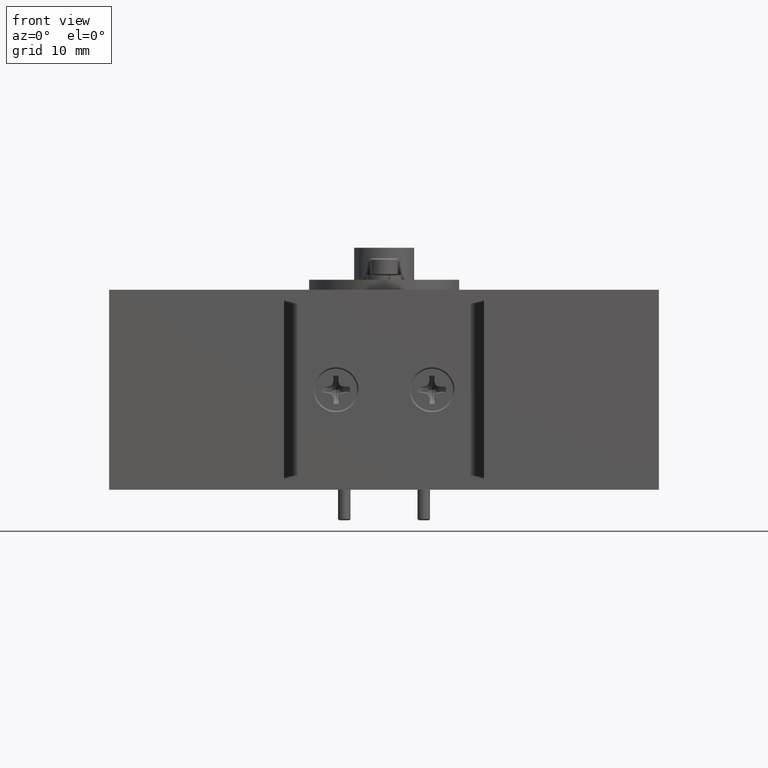
[diagram: clean part render]
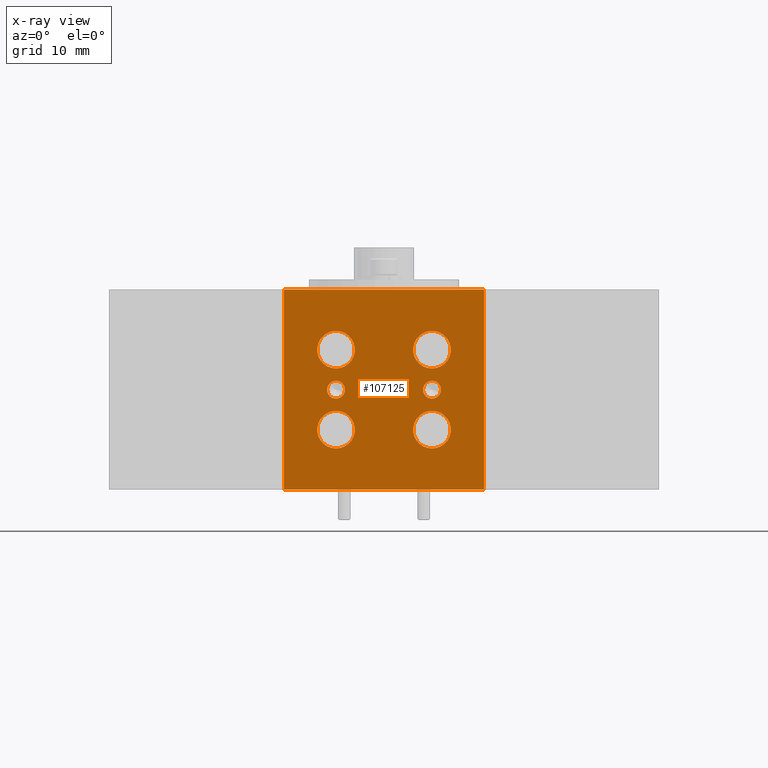
[diagram: x-ray — body ghosted, one internal face saturated and labeled with its STEP entity id]
A machine part, front view, then the same camera in x-ray: the body is ghosted and one INTERNAL B-rep face — a face not visible from any outside direction — is saturated and labeled: STEP entity #107125.
In plain terms, the highlighted planar face has unit normal (0, 1, 0).
Its self-contained STEP definition (entity closure, byte-faithful):
#526 = CARTESIAN_POINT ( 'NONE',  ( -55.29117711743991500, 30.96957720897322400, -1.655735864232246600 ) ) ;
#1470 = EDGE_CURVE ( 'NONE', #76946, #42703, #53502, .T. ) ;
#2186 = VERTEX_POINT ( 'NONE', #48449 ) ;
#2523 = VERTEX_POINT ( 'NONE', #526 ) ;
#2582 = EDGE_LOOP ( 'NONE', ( #37794, #97852 ) ) ;
#3877 = CARTESIAN_POINT ( 'NONE',  ( -55.29117711743991500, 30.96957720897322400, 2.166964135767751800 ) ) ;
#4878 = CIRCLE ( 'NONE', #82950, 1.130299999999998100 ) ;
#5655 = CARTESIAN_POINT ( 'NONE',  ( -61.89517711743991400, 30.96957720897322400, 13.73666413576775900 ) ) ;
#7475 = CARTESIAN_POINT ( 'NONE',  ( -43.09917711743992200, 30.96957720897322400, 8.504264135767755300 ) ) ;
#7739 = DIRECTION ( 'NONE',  ( 0.0000000000000000000, -1.000000000000000000, 0.0000000000000000000 ) ) ;
#7814 = EDGE_CURVE ( 'NONE', #2523, #2186, #40068, .T. ) ;
#8911 = CIRCLE ( 'NONE', #91980, 2.387599999999999900 ) ;
#9872 = CARTESIAN_POINT ( 'NONE',  ( -55.29117711743991500, 30.96957720897322400, -4.043335864232246600 ) ) ;
#10088 = EDGE_CURVE ( 'NONE', #51390, #35002, #81973, .T. ) ;
#10239 = CARTESIAN_POINT ( 'NONE',  ( -43.09917711743992200, 30.96957720897322400, -6.430935864232247400 ) ) ;
#10335 = CARTESIAN_POINT ( 'NONE',  ( -49.19517711743991800, 30.96957720897322400, 1.036664135767756000 ) ) ;
#10346 = DIRECTION ( 'NONE',  ( -1.000000000000000000, 0.0000000000000000000, 0.0000000000000000000 ) ) ;
#12312 = FACE_BOUND ( 'NONE', #106031, .T. ) ;
#14347 = CARTESIAN_POINT ( 'NONE',  ( -61.89517711743991400, 30.96957720897322400, 13.73666413576775900 ) ) ;
#15139 = EDGE_LOOP ( 'NONE', ( #41321, #27094 ) ) ;
#16314 = FACE_BOUND ( 'NONE', #51323, .T. ) ;
#17472 = ORIENTED_EDGE ( 'NONE', *, *, #7814, .F. ) ;
#18916 = VECTOR ( 'NONE', #46935, 1000.000000000000000 ) ;
#18957 = EDGE_CURVE ( 'NONE', #103663, #107417, #27720, .T. ) ;
#18959 = DIRECTION ( 'NONE',  ( 0.0000000000000000000, -1.000000000000000000, 0.0000000000000000000 ) ) ;
#19957 = CARTESIAN_POINT ( 'NONE',  ( -55.29117711743991500, 30.96957720897322400, 3.729064135767753600 ) ) ;
#20308 = EDGE_LOOP ( 'NONE', ( #75485, #71659 ) ) ;
#20722 = CARTESIAN_POINT ( 'NONE',  ( -36.49517711743992300, 30.96957720897322400, 13.73666413576775900 ) ) ;
#20934 = CIRCLE ( 'NONE', #63254, 2.387600000000000800 ) ;
#21469 = VERTEX_POINT ( 'NONE', #20722 ) ;
#23321 = VERTEX_POINT ( 'NONE', #37592 ) ;
#23513 = ORIENTED_EDGE ( 'NONE', *, *, #1470, .F. ) ;
#24382 = CARTESIAN_POINT ( 'NONE',  ( -55.29117711743991500, 30.96957720897322400, 6.116664135767753600 ) ) ;
#25069 = ORIENTED_EDGE ( 'NONE', *, *, #101579, .F. ) ;
#25448 = EDGE_LOOP ( 'NONE', ( #25069, #17472 ) ) ;
#25586 = DIRECTION ( 'NONE',  ( 0.0000000000000000000, -1.000000000000000000, 0.0000000000000000000 ) ) ;
#26197 = CIRCLE ( 'NONE', #60395, 2.387599999999999900 ) ;
#27018 = VERTEX_POINT ( 'NONE', #3877 ) ;
#27094 = ORIENTED_EDGE ( 'NONE', *, *, #70101, .F. ) ;
#27720 = CIRCLE ( 'NONE', #69439, 2.387599999999999900 ) ;
#27800 = EDGE_CURVE ( 'NONE', #21469, #76946, #30072, .T. ) ;
#30072 = LINE ( 'NONE', #84745, #36779 ) ;
#31759 = VECTOR ( 'NONE', #41980, 1000.000000000000000 ) ;
#33637 = CARTESIAN_POINT ( 'NONE',  ( -43.09917711743992200, 30.96957720897322400, 6.116664135767753600 ) ) ;
#34845 = VERTEX_POINT ( 'NONE', #104902 ) ;
#34947 = CARTESIAN_POINT ( 'NONE',  ( -43.09917711743992200, 30.96957720897322400, 1.036664135767753500 ) ) ;
#35002 = VERTEX_POINT ( 'NONE', #72637 ) ;
#35433 = CARTESIAN_POINT ( 'NONE',  ( -43.09917711743992200, 30.96957720897322400, -4.043335864232246600 ) ) ;
#35800 = LINE ( 'NONE', #14347, #31759 ) ;
#36226 = VERTEX_POINT ( 'NONE', #5655 ) ;
#36245 = CARTESIAN_POINT ( 'NONE',  ( -43.09917711743992200, 30.96957720897322400, -0.09363586423224469500 ) ) ;
#36779 = VECTOR ( 'NONE', #59304, 1000.000000000000000 ) ;
#37056 = AXIS2_PLACEMENT_3D ( 'NONE', #100444, #101919, #40069 ) ;
#37138 = ORIENTED_EDGE ( 'NONE', *, *, #63828, .F. ) ;
#37592 = CARTESIAN_POINT ( 'NONE',  ( -43.09917711743992200, 30.96957720897322400, 2.166964135767751800 ) ) ;
#37794 = ORIENTED_EDGE ( 'NONE', *, *, #55582, .F. ) ;
#39623 = CARTESIAN_POINT ( 'NONE',  ( -43.09917711743992200, 30.96957720897322400, -1.655735864232246600 ) ) ;
#40068 = CIRCLE ( 'NONE', #111572, 2.387599999999999900 ) ;
#40069 = DIRECTION ( 'NONE',  ( 0.0000000000000000000, 0.0000000000000000000, -1.000000000000000000 ) ) ;
#41321 = ORIENTED_EDGE ( 'NONE', *, *, #10088, .F. ) ;
#41980 = DIRECTION ( 'NONE',  ( -0.0000000000000000000, -0.0000000000000000000, 1.000000000000000000 ) ) ;
#42703 = VERTEX_POINT ( 'NONE', #84456 ) ;
#44579 = EDGE_CURVE ( 'NONE', #49749, #27018, #4878, .T. ) ;
#46189 = EDGE_CURVE ( 'NONE', #42703, #36226, #35800, .T. ) ;
#46935 = DIRECTION ( 'NONE',  ( 1.000000000000000000, -0.0000000000000000000, -0.0000000000000000000 ) ) ;
#48449 = CARTESIAN_POINT ( 'NONE',  ( -55.29117711743991500, 30.96957720897322400, -6.430935864232247400 ) ) ;
#49677 = DIRECTION ( 'NONE',  ( 0.0000000000000000000, 0.0000000000000000000, -1.000000000000000000 ) ) ;
#49749 = VERTEX_POINT ( 'NONE', #104054 ) ;
#50228 = FACE_OUTER_BOUND ( 'NONE', #99384, .T. ) ;
#51043 = AXIS2_PLACEMENT_3D ( 'NONE', #34947, #78929, #51228 ) ;
#51065 = EDGE_CURVE ( 'NONE', #36226, #21469, #66451, .T. ) ;
#51228 = DIRECTION ( 'NONE',  ( 0.0000000000000000000, 0.0000000000000000000, -1.000000000000000000 ) ) ;
#51323 = EDGE_LOOP ( 'NONE', ( #37138, #101128 ) ) ;
#51390 = VERTEX_POINT ( 'NONE', #19957 ) ;
#52391 = DIRECTION ( 'NONE',  ( 0.0000000000000000000, 0.0000000000000000000, -1.000000000000000000 ) ) ;
#53502 = LINE ( 'NONE', #106623, #54818 ) ;
#54007 = CIRCLE ( 'NONE', #77408, 1.130299999999998100 ) ;
#54818 = VECTOR ( 'NONE', #10346, 1000.000000000000000 ) ;
#55582 = EDGE_CURVE ( 'NONE', #34845, #64382, #71511, .T. ) ;
#58693 = DIRECTION ( 'NONE',  ( 0.0000000000000000000, -1.000000000000000000, 0.0000000000000000000 ) ) ;
#59058 = ORIENTED_EDGE ( 'NONE', *, *, #51065, .F. ) ;
#59207 = CARTESIAN_POINT ( 'NONE',  ( -55.29117711743991500, 30.96957720897322400, 6.116664135767753600 ) ) ;
#59304 = DIRECTION ( 'NONE',  ( 0.0000000000000000000, 0.0000000000000000000, -1.000000000000000000 ) ) ;
#59692 = CARTESIAN_POINT ( 'NONE',  ( -55.29117711743991500, 30.96957720897322400, -4.043335864232246600 ) ) ;
#59873 = ORIENTED_EDGE ( 'NONE', *, *, #46189, .F. ) ;
#60395 = AXIS2_PLACEMENT_3D ( 'NONE', #24382, #102483, #52391 ) ;
#60883 = CARTESIAN_POINT ( 'NONE',  ( -43.09917711743992200, 30.96957720897322400, 6.116664135767753600 ) ) ;
#62291 = PLANE ( 'NONE',  #106615 ) ;
#63254 = AXIS2_PLACEMENT_3D ( 'NONE', #33637, #58693, #76478 ) ;
#63828 = EDGE_CURVE ( 'NONE', #84312, #23321, #54007, .T. ) ;
#64382 = VERTEX_POINT ( 'NONE', #7475 ) ;
#64405 = CARTESIAN_POINT ( 'NONE',  ( -36.49517711743992300, 30.96957720897322400, 13.73666413576775900 ) ) ;
#66451 = LINE ( 'NONE', #64405, #18916 ) ;
#66761 = CARTESIAN_POINT ( 'NONE',  ( -43.09917711743992200, 30.96957720897322400, 1.036664135767753500 ) ) ;
#68256 = AXIS2_PLACEMENT_3D ( 'NONE', #59207, #110362, #83897 ) ;
#68410 = DIRECTION ( 'NONE',  ( 0.0000000000000000000, 0.0000000000000000000, -1.000000000000000000 ) ) ;
#69439 = AXIS2_PLACEMENT_3D ( 'NONE', #85870, #94609, #77482 ) ;
#70101 = EDGE_CURVE ( 'NONE', #35002, #51390, #26197, .T. ) ;
#71511 = CIRCLE ( 'NONE', #104486, 2.387600000000000800 ) ;
#71659 = ORIENTED_EDGE ( 'NONE', *, *, #107647, .F. ) ;
#72637 = CARTESIAN_POINT ( 'NONE',  ( -55.29117711743991500, 30.96957720897322400, 8.504264135767753500 ) ) ;
#73095 = CIRCLE ( 'NONE', #51043, 1.130299999999998100 ) ;
#74319 = EDGE_CURVE ( 'NONE', #23321, #84312, #73095, .T. ) ;
#74744 = EDGE_CURVE ( 'NONE', #107417, #103663, #107033, .T. ) ;
#75485 = ORIENTED_EDGE ( 'NONE', *, *, #44579, .F. ) ;
#75953 = DIRECTION ( 'NONE',  ( -0.0000000000000000000, -1.000000000000000000, -0.0000000000000000000 ) ) ;
#76478 = DIRECTION ( 'NONE',  ( 0.0000000000000000000, 0.0000000000000000000, -1.000000000000000000 ) ) ;
#76946 = VERTEX_POINT ( 'NONE', #87574 ) ;
#77408 = AXIS2_PLACEMENT_3D ( 'NONE', #66761, #111459, #49677 ) ;
#77482 = DIRECTION ( 'NONE',  ( 0.0000000000000000000, 0.0000000000000000000, -1.000000000000000000 ) ) ;
#78929 = DIRECTION ( 'NONE',  ( -0.0000000000000000000, -1.000000000000000000, -0.0000000000000000000 ) ) ;
#81973 = CIRCLE ( 'NONE', #68256, 2.387599999999999900 ) ;
#82950 = AXIS2_PLACEMENT_3D ( 'NONE', #109316, #75953, #93089 ) ;
#83897 = DIRECTION ( 'NONE',  ( 0.0000000000000000000, 0.0000000000000000000, -1.000000000000000000 ) ) ;
#84312 = VERTEX_POINT ( 'NONE', #36245 ) ;
#84456 = CARTESIAN_POINT ( 'NONE',  ( -61.89517711743991400, 30.96957720897322400, -11.66333586423224000 ) ) ;
#84745 = CARTESIAN_POINT ( 'NONE',  ( -36.49517711743992300, 30.96957720897322400, 13.73666413576775900 ) ) ;
#84911 = ORIENTED_EDGE ( 'NONE', *, *, #74744, .F. ) ;
#85532 = FACE_BOUND ( 'NONE', #15139, .T. ) ;
#85870 = CARTESIAN_POINT ( 'NONE',  ( -43.09917711743992200, 30.96957720897322400, -4.043335864232246600 ) ) ;
#87574 = CARTESIAN_POINT ( 'NONE',  ( -36.49517711743992300, 30.96957720897322400, -11.66333586423224000 ) ) ;
#89619 = DIRECTION ( 'NONE',  ( 0.0000000000000000000, 1.000000000000000000, 0.0000000000000000000 ) ) ;
#90646 = ORIENTED_EDGE ( 'NONE', *, *, #27800, .F. ) ;
#91459 = DIRECTION ( 'NONE',  ( 0.0000000000000000000, -0.0000000000000000000, 1.000000000000000000 ) ) ;
#91980 = AXIS2_PLACEMENT_3D ( 'NONE', #59692, #7739, #68410 ) ;
#93089 = DIRECTION ( 'NONE',  ( 0.0000000000000000000, 0.0000000000000000000, -1.000000000000000000 ) ) ;
#94179 = AXIS2_PLACEMENT_3D ( 'NONE', #35433, #25586, #96133 ) ;
#94609 = DIRECTION ( 'NONE',  ( 0.0000000000000000000, -1.000000000000000000, 0.0000000000000000000 ) ) ;
#95283 = EDGE_CURVE ( 'NONE', #64382, #34845, #20934, .T. ) ;
#95411 = DIRECTION ( 'NONE',  ( 0.0000000000000000000, -1.000000000000000000, 0.0000000000000000000 ) ) ;
#96133 = DIRECTION ( 'NONE',  ( 0.0000000000000000000, 0.0000000000000000000, -1.000000000000000000 ) ) ;
#96151 = DIRECTION ( 'NONE',  ( 0.0000000000000000000, 0.0000000000000000000, -1.000000000000000000 ) ) ;
#96435 = FACE_BOUND ( 'NONE', #20308, .T. ) ;
#97107 = DIRECTION ( 'NONE',  ( 0.0000000000000000000, 0.0000000000000000000, -1.000000000000000000 ) ) ;
#97743 = FACE_BOUND ( 'NONE', #25448, .T. ) ;
#97852 = ORIENTED_EDGE ( 'NONE', *, *, #95283, .F. ) ;
#99384 = EDGE_LOOP ( 'NONE', ( #59873, #23513, #90646, #59058 ) ) ;
#100444 = CARTESIAN_POINT ( 'NONE',  ( -55.29117711743991500, 30.96957720897322400, 1.036664135767753500 ) ) ;
#101128 = ORIENTED_EDGE ( 'NONE', *, *, #74319, .F. ) ;
#101579 = EDGE_CURVE ( 'NONE', #2186, #2523, #8911, .T. ) ;
#101919 = DIRECTION ( 'NONE',  ( -0.0000000000000000000, -1.000000000000000000, -0.0000000000000000000 ) ) ;
#102483 = DIRECTION ( 'NONE',  ( 0.0000000000000000000, -1.000000000000000000, 0.0000000000000000000 ) ) ;
#103663 = VERTEX_POINT ( 'NONE', #39623 ) ;
#104054 = CARTESIAN_POINT ( 'NONE',  ( -55.29117711743991500, 30.96957720897322400, -0.09363586423224469500 ) ) ;
#104486 = AXIS2_PLACEMENT_3D ( 'NONE', #60883, #95411, #96151 ) ;
#104902 = CARTESIAN_POINT ( 'NONE',  ( -43.09917711743992200, 30.96957720897322400, 3.729064135767752800 ) ) ;
#105871 = FACE_BOUND ( 'NONE', #2582, .T. ) ;
#106031 = EDGE_LOOP ( 'NONE', ( #84911, #109786 ) ) ;
#106615 = AXIS2_PLACEMENT_3D ( 'NONE', #10335, #89619, #91459 ) ;
#106623 = CARTESIAN_POINT ( 'NONE',  ( -36.49517711743992300, 30.96957720897322400, -11.66333586423224000 ) ) ;
#107033 = CIRCLE ( 'NONE', #94179, 2.387599999999999900 ) ;
#107125 = ADVANCED_FACE ( 'NONE', ( #16314, #96435, #85532, #105871, #12312, #97743, #50228 ), #62291, .F. ) ;
#107417 = VERTEX_POINT ( 'NONE', #10239 ) ;
#107647 = EDGE_CURVE ( 'NONE', #27018, #49749, #111153, .T. ) ;
#109316 = CARTESIAN_POINT ( 'NONE',  ( -55.29117711743991500, 30.96957720897322400, 1.036664135767753500 ) ) ;
#109786 = ORIENTED_EDGE ( 'NONE', *, *, #18957, .F. ) ;
#110362 = DIRECTION ( 'NONE',  ( 0.0000000000000000000, -1.000000000000000000, 0.0000000000000000000 ) ) ;
#111153 = CIRCLE ( 'NONE', #37056, 1.130299999999998100 ) ;
#111459 = DIRECTION ( 'NONE',  ( -0.0000000000000000000, -1.000000000000000000, -0.0000000000000000000 ) ) ;
#111572 = AXIS2_PLACEMENT_3D ( 'NONE', #9872, #18959, #97107 ) ;